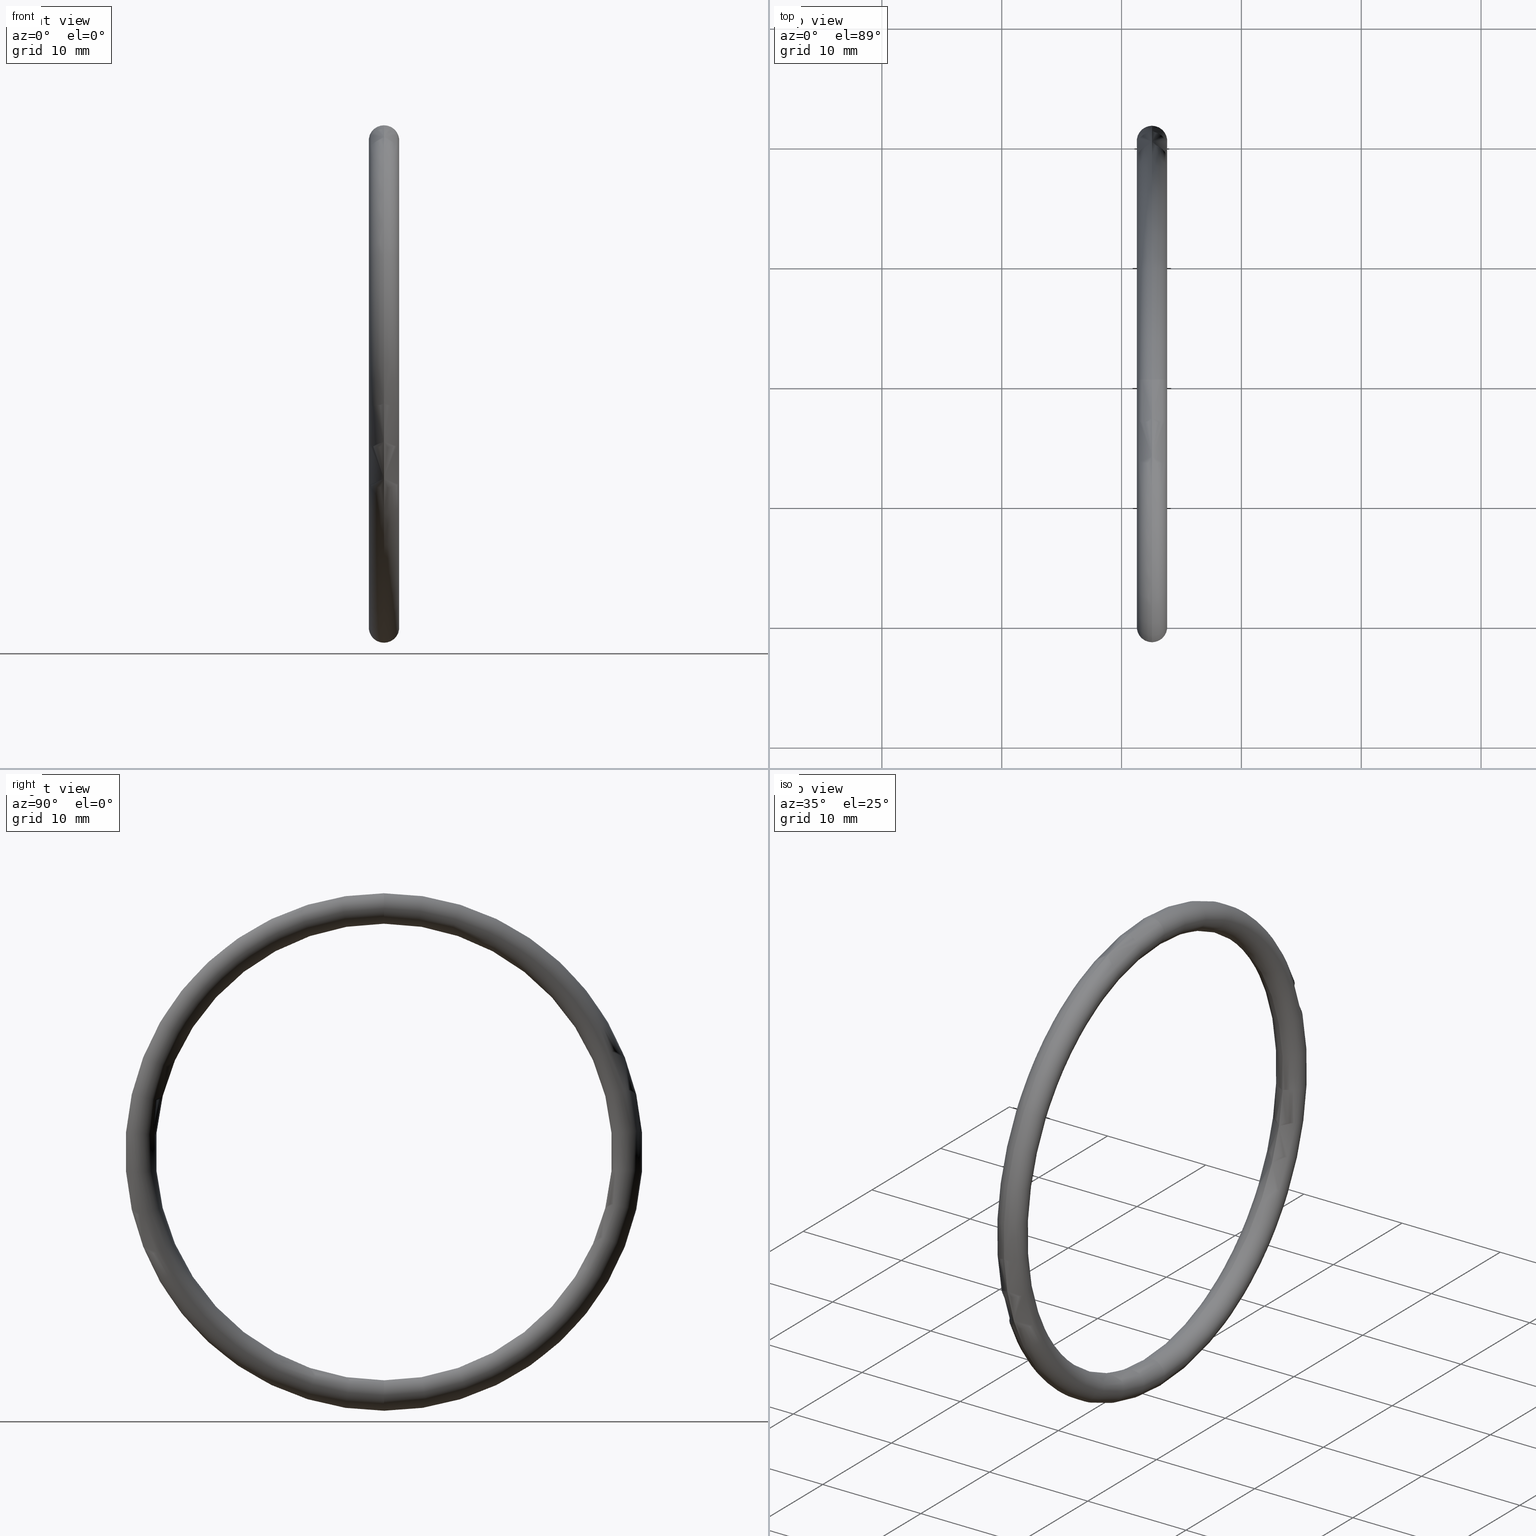
[diagram: canonical four-view strip — front | top / right | iso, engineering-drawing reading convention]
A machine part, canonical four-view strip (front | top / right | iso — engineering-drawing reading convention). The complete STEP part file that produces these views, byte-faithful:
ISO-10303-21;
HEADER;
FILE_DESCRIPTION (( 'STEP AP203' ),
    '1' );
FILE_NAME ('OR-54-VT.STEP',
    '2008-06-24T11:05:07',
    ( 'BSI05' ),
    ( 'BAYSTATE' ),
    'SwSTEP 2.0',
    'SolidWorks 2007',
    '' );
FILE_SCHEMA (( 'CONFIG_CONTROL_DESIGN' ));
ENDSEC;

DATA;
#1 = DIRECTION ( 'NONE',  ( 0.0000000000000000000, 0.0000000000000000000, 1.000000000000000000 ) ) ;
#2 = DIRECTION ( 'NONE',  ( -1.000000000000000000, 0.0000000000000000000, 0.0000000000000000000 ) ) ;
#3 = CIRCLE ( 'NONE', #5, 0.7500000000000001100 ) ;
#4 = CARTESIAN_POINT ( 'NONE',  ( 0.1000000000000000900, 0.0000000000000000000, 0.0000000000000000000 ) ) ;
#5 = AXIS2_PLACEMENT_3D ( 'NONE', #4, #2, #1 ) ;
#6 = CLOSED_SHELL ( 'NONE', ( #28, #33, #22, #15 ) ) ;
#7 = ORIENTED_EDGE ( 'NONE', *, *, #18, .T. ) ;
#8 = MANIFOLD_SOLID_BREP ( 'NONE', #6 ) ;
#9 = ORIENTED_EDGE ( 'NONE', *, *, #13, .F. ) ;
#10 = ORIENTED_EDGE ( 'NONE', *, *, #36, .F. ) ;
#11 = EDGE_LOOP ( 'NONE', ( #10, #9, #27, #7 ) ) ;
#12 = ORIENTED_EDGE ( 'NONE', *, *, #13, .T. ) ;
#13 = EDGE_CURVE ( 'NONE', #29, #30, #48, .T. ) ;
#14 = ORIENTED_EDGE ( 'NONE', *, *, #31, .F. ) ;
#15 = ADVANCED_FACE ( 'NONE', ( #57 ), #59, .T. ) ;
#16 = ORIENTED_EDGE ( 'NONE', *, *, #40, .T. ) ;
#17 = ORIENTED_EDGE ( 'NONE', *, *, #18, .F. ) ;
#18 = EDGE_CURVE ( 'NONE', #42, #35, #55, .T. ) ;
#19 = ORIENTED_EDGE ( 'NONE', *, *, #21, .F. ) ;
#20 = ORIENTED_EDGE ( 'NONE', *, *, #31, .T. ) ;
#21 = EDGE_CURVE ( 'NONE', #35, #30, #68, .T. ) ;
#22 = ADVANCED_FACE ( 'NONE', ( #69 ), #63, .T. ) ;
#23 = ORIENTED_EDGE ( 'NONE', *, *, #21, .T. ) ;
#24 = ORIENTED_EDGE ( 'NONE', *, *, #34, .F. ) ;
#25 = ORIENTED_EDGE ( 'NONE', *, *, #26, .F. ) ;
#26 = EDGE_CURVE ( 'NONE', #29, #42, #3, .T. ) ;
#27 = ORIENTED_EDGE ( 'NONE', *, *, #26, .T. ) ;
#28 = ADVANCED_FACE ( 'NONE', ( #116 ), #137, .T. ) ;
#29 = VERTEX_POINT ( 'NONE', #133 ) ;
#30 = VERTEX_POINT ( 'NONE', #77 ) ;
#31 = EDGE_CURVE ( 'NONE', #30, #29, #97, .T. ) ;
#32 = EDGE_LOOP ( 'NONE', ( #24, #23, #20, #39 ) ) ;
#33 = ADVANCED_FACE ( 'NONE', ( #95 ), #71, .T. ) ;
#34 = EDGE_CURVE ( 'NONE', #35, #42, #188, .T. ) ;
#35 = VERTEX_POINT ( 'NONE', #189 ) ;
#36 = EDGE_CURVE ( 'NONE', #30, #35, #101, .T. ) ;
#37 = ORIENTED_EDGE ( 'NONE', *, *, #36, .T. ) ;
#38 = EDGE_LOOP ( 'NONE', ( #19, #17, #16, #12 ) ) ;
#39 = ORIENTED_EDGE ( 'NONE', *, *, #40, .F. ) ;
#40 = EDGE_CURVE ( 'NONE', #42, #29, #181, .T. ) ;
#41 = ORIENTED_EDGE ( 'NONE', *, *, #34, .T. ) ;
#42 = VERTEX_POINT ( 'NONE', #81 ) ;
#43 = EDGE_LOOP ( 'NONE', ( #14, #37, #41, #25 ) ) ;
#44 = DIRECTION ( 'NONE',  ( 0.0000000000000000000, -1.224646799147354700E-016, 1.000000000000000000 ) ) ;
#45 = DIRECTION ( 'NONE',  ( 0.0000000000000000000, 1.000000000000000000, 1.224646799147353200E-016 ) ) ;
#46 = CARTESIAN_POINT ( 'NONE',  ( 0.1000000000000000900, 9.797174393178826200E-017, -0.8000000000000000400 ) ) ;
#47 = AXIS2_PLACEMENT_3D ( 'NONE', #46, #45, #44 ) ;
#48 = CIRCLE ( 'NONE', #47, 0.05000000000000001000 ) ;
#49 = DIRECTION ( 'NONE',  ( -1.000000000000000000, 0.0000000000000000000, 0.0000000000000000000 ) ) ;
#50 = CARTESIAN_POINT ( 'NONE',  ( 0.1000000000000000900, 0.0000000000000000000, 0.0000000000000000000 ) ) ;
#51 = DIRECTION ( 'NONE',  ( 0.0000000000000000000, 0.0000000000000000000, -1.000000000000000000 ) ) ;
#52 = DIRECTION ( 'NONE',  ( 0.0000000000000000000, -1.000000000000000000, 0.0000000000000000000 ) ) ;
#53 = CARTESIAN_POINT ( 'NONE',  ( 0.1000000000000000900, 0.0000000000000000000, 0.8000000000000000400 ) ) ;
#54 = AXIS2_PLACEMENT_3D ( 'NONE', #53, #52, #51 ) ;
#55 = CIRCLE ( 'NONE', #54, 0.05000000000000001000 ) ;
#56 = CARTESIAN_POINT ( 'NONE',  ( 0.1000000000000000900, 0.0000000000000000000, 0.0000000000000000000 ) ) ;
#57 = FACE_OUTER_BOUND ( 'NONE', #11, .T. ) ;
#58 = DIRECTION ( 'NONE',  ( 0.0000000000000000000, 0.0000000000000000000, 1.000000000000000000 ) ) ;
#59 = TOROIDAL_SURFACE ( 'NONE', #70, 0.8000000000000000400, 0.05000000000000002400 ) ;
#60 = DIRECTION ( 'NONE',  ( 0.0000000000000000000, 0.0000000000000000000, 1.000000000000000000 ) ) ;
#61 = DIRECTION ( 'NONE',  ( -1.000000000000000000, 0.0000000000000000000, 0.0000000000000000000 ) ) ;
#62 = AXIS2_PLACEMENT_3D ( 'NONE', #64, #61, #60 ) ;
#63 = TOROIDAL_SURFACE ( 'NONE', #62, 0.8000000000000000400, 0.05000000000000002400 ) ;
#64 = CARTESIAN_POINT ( 'NONE',  ( 0.1000000000000000900, 0.0000000000000000000, 0.0000000000000000000 ) ) ;
#65 = DIRECTION ( 'NONE',  ( 0.0000000000000000000, 0.0000000000000000000, 1.000000000000000000 ) ) ;
#66 = DIRECTION ( 'NONE',  ( -1.000000000000000000, 0.0000000000000000000, 0.0000000000000000000 ) ) ;
#67 = AXIS2_PLACEMENT_3D ( 'NONE', #56, #66, #65 ) ;
#68 = CIRCLE ( 'NONE', #67, 0.8500000000000000900 ) ;
#69 = FACE_OUTER_BOUND ( 'NONE', #38, .T. ) ;
#70 = AXIS2_PLACEMENT_3D ( 'NONE', #50, #49, #58 ) ;
#71 = TOROIDAL_SURFACE ( 'NONE', #138, 0.8000000000000000400, 0.05000000000000002400 ) ;
#72 = DIRECTION ( 'NONE',  ( -1.000000000000000000, 0.0000000000000000000, 0.0000000000000000000 ) ) ;
#73 = CARTESIAN_POINT ( 'NONE',  ( 0.1000000000000000900, 0.0000000000000000000, 0.0000000000000000000 ) ) ;
#74 = DIRECTION ( 'NONE',  ( 0.0000000000000000000, -1.224646799147354700E-016, 1.000000000000000000 ) ) ;
#75 = DIRECTION ( 'NONE',  ( 0.0000000000000000000, 1.000000000000000000, 1.224646799147353200E-016 ) ) ;
#76 = AXIS2_PLACEMENT_3D ( 'NONE', #112, #192, #103 ) ;
#77 = CARTESIAN_POINT ( 'NONE',  ( 0.1000000000000000900, 1.040949779275250400E-016, -0.8500000000000000900 ) ) ;
#78 =( NAMED_UNIT ( * ) PLANE_ANGLE_UNIT ( ) SI_UNIT ( $, .RADIAN. ) );
#79 =( CONVERSION_BASED_UNIT ( 'INCH', #113 ) LENGTH_UNIT ( ) NAMED_UNIT ( #114 ) );
#80 = DIRECTION ( 'NONE',  ( 0.0000000000000000000, 0.0000000000000000000, 1.000000000000000000 ) ) ;
#81 = CARTESIAN_POINT ( 'NONE',  ( 0.1000000000000000900, 0.0000000000000000000, 0.7500000000000001100 ) ) ;
#82 = CC_DESIGN_PERSON_AND_ORGANIZATION_ASSIGNMENT ( #84, #83, ( #144 ) ) ;
#83 = PERSON_AND_ORGANIZATION_ROLE ( 'design_supplier' ) ;
#84 = PERSON_AND_ORGANIZATION ( #186, #185 ) ;
#85 = CC_DESIGN_PERSON_AND_ORGANIZATION_ASSIGNMENT ( #87, #86, ( #144 ) ) ;
#86 = PERSON_AND_ORGANIZATION_ROLE ( 'creator' ) ;
#87 = PERSON_AND_ORGANIZATION ( #186, #185 ) ;
#88 = CC_DESIGN_APPROVAL ( #141, ( #144 ) ) ;
#89 = APPROVAL_DATE_TIME ( #90, #141 ) ;
#90 = DATE_AND_TIME ( #91, #92 ) ;
#91 = CALENDAR_DATE ( 2008, 24, 6 ) ;
#92 = LOCAL_TIME ( 16, 35, 7.000000000000000000, #93 ) ;
#93 = COORDINATED_UNIVERSAL_TIME_OFFSET ( 5, 30, .AHEAD. ) ;
#94 = APPROVAL_PERSON_ORGANIZATION ( #143, #141, #140 ) ;
#95 = FACE_OUTER_BOUND ( 'NONE', #32, .T. ) ;
#96 = AXIS2_PLACEMENT_3D ( 'NONE', #104, #75, #74 ) ;
#97 = CIRCLE ( 'NONE', #96, 0.05000000000000001000 ) ;
#98 = DIRECTION ( 'NONE',  ( -1.000000000000000000, 0.0000000000000000000, 0.0000000000000000000 ) ) ;
#99 = CARTESIAN_POINT ( 'NONE',  ( 0.1000000000000000900, 0.0000000000000000000, 0.0000000000000000000 ) ) ;
#100 = AXIS2_PLACEMENT_3D ( 'NONE', #99, #98, #108 ) ;
#101 = CIRCLE ( 'NONE', #100, 0.8500000000000000900 ) ;
#102 = CARTESIAN_POINT ( 'NONE',  ( 0.1000000000000000900, 0.0000000000000000000, 0.0000000000000000000 ) ) ;
#103 = DIRECTION ( 'NONE',  ( 0.0000000000000000000, 0.0000000000000000000, 1.000000000000000000 ) ) ;
#104 = CARTESIAN_POINT ( 'NONE',  ( 0.1000000000000000900, 9.797174393178826200E-017, -0.8000000000000000400 ) ) ;
#105 = SHAPE_DEFINITION_REPRESENTATION ( #132, #106 ) ;
#106 = ADVANCED_BREP_SHAPE_REPRESENTATION ( 'OR-54-VT', ( #8, #191 ), #107 ) ;
#107 =( GEOMETRIC_REPRESENTATION_CONTEXT ( 3 ) GLOBAL_UNCERTAINTY_ASSIGNED_CONTEXT ( ( #109 ) ) GLOBAL_UNIT_ASSIGNED_CONTEXT ( ( #79, #78, #110 ) ) REPRESENTATION_CONTEXT ( 'NONE', 'WORKASPACE' ) );
#108 = DIRECTION ( 'NONE',  ( 0.0000000000000000000, 0.0000000000000000000, 1.000000000000000000 ) ) ;
#109 = UNCERTAINTY_MEASURE_WITH_UNIT (LENGTH_MEASURE( 1.000000000000000100E-005 ), #79, 'distance_accuracy_value', 'NONE');
#110 =( NAMED_UNIT ( * ) SI_UNIT ( $, .STERADIAN. ) SOLID_ANGLE_UNIT ( ) );
#111 = DIRECTION ( 'NONE',  ( 1.000000000000000000, 0.0000000000000000000, 0.0000000000000000000 ) ) ;
#112 = CARTESIAN_POINT ( 'NONE',  ( 0.1000000000000000900, 0.0000000000000000000, 0.0000000000000000000 ) ) ;
#113 = LENGTH_MEASURE_WITH_UNIT ( LENGTH_MEASURE( 0.02539999999999999900 ), #115 );
#114 = DIMENSIONAL_EXPONENTS ( 1.000000000000000000, 0.0000000000000000000, 0.0000000000000000000, 0.0000000000000000000, 0.0000000000000000000, 0.0000000000000000000, 0.0000000000000000000 ) ;
#115 =( LENGTH_UNIT ( ) NAMED_UNIT ( * ) SI_UNIT ( $, .METRE. ) );
#116 = FACE_OUTER_BOUND ( 'NONE', #43, .T. ) ;
#117 = CC_DESIGN_APPROVAL ( #125, ( #128 ) ) ;
#118 = APPROVAL_DATE_TIME ( #119, #125 ) ;
#119 = DATE_AND_TIME ( #120, #121 ) ;
#120 = CALENDAR_DATE ( 2008, 24, 6 ) ;
#121 = LOCAL_TIME ( 16, 35, 7.000000000000000000, #122 ) ;
#122 = COORDINATED_UNIVERSAL_TIME_OFFSET ( 5, 30, .AHEAD. ) ;
#123 = APPROVAL_PERSON_ORGANIZATION ( #127, #125, #124 ) ;
#124 = APPROVAL_ROLE ( '' ) ;
#125 = APPROVAL ( #126, 'UNSPECIFIED' ) ;
#126 = APPROVAL_STATUS ( 'not_yet_approved' ) ;
#127 = PERSON_AND_ORGANIZATION ( #186, #185 ) ;
#128 = PRODUCT_DEFINITION ( 'UNKNOWN', '', #144, #129 ) ;
#129 = DESIGN_CONTEXT ( 'detailed design', #131, 'design' ) ;
#130 = APPLICATION_PROTOCOL_DEFINITION ( 'international standard', 'config_control_design', 1994, #131 ) ;
#131 = APPLICATION_CONTEXT ( 'configuration controlled 3d designs of mechanical parts and assemblies' ) ;
#132 = PRODUCT_DEFINITION_SHAPE ( 'NONE', 'NONE',  #128 ) ;
#133 = CARTESIAN_POINT ( 'NONE',  ( 0.1000000000000000900, 9.184850993605148400E-017, -0.7500000000000001100 ) ) ;
#134 = DIRECTION ( 'NONE',  ( 0.0000000000000000000, 0.0000000000000000000, -1.000000000000000000 ) ) ;
#135 = DIRECTION ( 'NONE',  ( 0.0000000000000000000, -1.000000000000000000, 0.0000000000000000000 ) ) ;
#136 = CARTESIAN_POINT ( 'NONE',  ( 0.1000000000000000900, 0.0000000000000000000, 0.8000000000000000400 ) ) ;
#137 = TOROIDAL_SURFACE ( 'NONE', #76, 0.8000000000000000400, 0.05000000000000002400 ) ;
#138 = AXIS2_PLACEMENT_3D ( 'NONE', #73, #72, #139 ) ;
#139 = DIRECTION ( 'NONE',  ( 0.0000000000000000000, 0.0000000000000000000, 1.000000000000000000 ) ) ;
#140 = APPROVAL_ROLE ( '' ) ;
#141 = APPROVAL ( #142, 'UNSPECIFIED' ) ;
#142 = APPROVAL_STATUS ( 'not_yet_approved' ) ;
#143 = PERSON_AND_ORGANIZATION ( #186, #185 ) ;
#144 = PRODUCT_DEFINITION_FORMATION_WITH_SPECIFIED_SOURCE ( 'ANY', '', #193, .NOT_KNOWN. ) ;
#145 = CC_DESIGN_DATE_AND_TIME_ASSIGNMENT ( #147, #146, ( #128 ) ) ;
#146 = DATE_TIME_ROLE ( 'creation_date' ) ;
#147 = DATE_AND_TIME ( #148, #149 ) ;
#148 = CALENDAR_DATE ( 2008, 24, 6 ) ;
#149 = LOCAL_TIME ( 16, 35, 7.000000000000000000, #150 ) ;
#150 = COORDINATED_UNIVERSAL_TIME_OFFSET ( 5, 30, .AHEAD. ) ;
#151 = CC_DESIGN_PERSON_AND_ORGANIZATION_ASSIGNMENT ( #153, #152, ( #128 ) ) ;
#152 = PERSON_AND_ORGANIZATION_ROLE ( 'creator' ) ;
#153 = PERSON_AND_ORGANIZATION ( #186, #185 ) ;
#154 = PRODUCT_RELATED_PRODUCT_CATEGORY ( 'detail', '', ( #193 ) ) ;
#155 = CC_DESIGN_SECURITY_CLASSIFICATION ( #176, ( #144 ) ) ;
#156 = CC_DESIGN_APPROVAL ( #164, ( #176 ) ) ;
#157 = APPROVAL_DATE_TIME ( #158, #164 ) ;
#158 = DATE_AND_TIME ( #159, #160 ) ;
#159 = CALENDAR_DATE ( 2008, 24, 6 ) ;
#160 = LOCAL_TIME ( 16, 35, 7.000000000000000000, #161 ) ;
#161 = COORDINATED_UNIVERSAL_TIME_OFFSET ( 5, 30, .AHEAD. ) ;
#162 = APPROVAL_PERSON_ORGANIZATION ( #166, #164, #163 ) ;
#163 = APPROVAL_ROLE ( '' ) ;
#164 = APPROVAL ( #165, 'UNSPECIFIED' ) ;
#165 = APPROVAL_STATUS ( 'not_yet_approved' ) ;
#166 = PERSON_AND_ORGANIZATION ( #186, #185 ) ;
#167 = CC_DESIGN_DATE_AND_TIME_ASSIGNMENT ( #169, #168, ( #176 ) ) ;
#168 = DATE_TIME_ROLE ( 'classification_date' ) ;
#169 = DATE_AND_TIME ( #170, #171 ) ;
#170 = CALENDAR_DATE ( 2008, 24, 6 ) ;
#171 = LOCAL_TIME ( 16, 35, 7.000000000000000000, #172 ) ;
#172 = COORDINATED_UNIVERSAL_TIME_OFFSET ( 5, 30, .AHEAD. ) ;
#173 = CC_DESIGN_PERSON_AND_ORGANIZATION_ASSIGNMENT ( #175, #174, ( #176 ) ) ;
#174 = PERSON_AND_ORGANIZATION_ROLE ( 'classification_officer' ) ;
#175 = PERSON_AND_ORGANIZATION ( #186, #185 ) ;
#176 = SECURITY_CLASSIFICATION ( '', '', #177 ) ;
#177 = SECURITY_CLASSIFICATION_LEVEL ( 'unclassified' ) ;
#178 = DIRECTION ( 'NONE',  ( 0.0000000000000000000, 0.0000000000000000000, 1.000000000000000000 ) ) ;
#179 = DIRECTION ( 'NONE',  ( -1.000000000000000000, 0.0000000000000000000, 0.0000000000000000000 ) ) ;
#180 = AXIS2_PLACEMENT_3D ( 'NONE', #102, #179, #178 ) ;
#181 = CIRCLE ( 'NONE', #180, 0.7500000000000001100 ) ;
#182 = CC_DESIGN_PERSON_AND_ORGANIZATION_ASSIGNMENT ( #184, #183, ( #193 ) ) ;
#183 = PERSON_AND_ORGANIZATION_ROLE ( 'design_owner' ) ;
#184 = PERSON_AND_ORGANIZATION ( #186, #185 ) ;
#185 = ORGANIZATION ( 'UNSPECIFIED', 'UNSPECIFIED', '' ) ;
#186 = PERSON ( 'UNSPECIFIED', 'UNSPECIFIED', 'UNSPECIFIED', ('UNSPECIFIED'), ('UNSPECIFIED'), ('UNSPECIFIED') ) ;
#187 = AXIS2_PLACEMENT_3D ( 'NONE', #136, #135, #134 ) ;
#188 = CIRCLE ( 'NONE', #187, 0.05000000000000001000 ) ;
#189 = CARTESIAN_POINT ( 'NONE',  ( 0.1000000000000000900, 0.0000000000000000000, 0.8500000000000000900 ) ) ;
#190 = CARTESIAN_POINT ( 'NONE',  ( 0.0000000000000000000, 0.0000000000000000000, 0.0000000000000000000 ) ) ;
#191 = AXIS2_PLACEMENT_3D ( 'NONE', #190, #80, #111 ) ;
#192 = DIRECTION ( 'NONE',  ( -1.000000000000000000, 0.0000000000000000000, 0.0000000000000000000 ) ) ;
#193 = PRODUCT ( 'OR-54-VT', 'OR-54-VT', '', ( #194 ) ) ;
#194 = MECHANICAL_CONTEXT ( 'NONE', #196, 'mechanical' ) ;
#195 = APPLICATION_PROTOCOL_DEFINITION ( 'international standard', 'config_control_design', 1994, #196 ) ;
#196 = APPLICATION_CONTEXT ( 'configuration controlled 3d designs of mechanical parts and assemblies' ) ;
ENDSEC;
END-ISO-10303-21;
